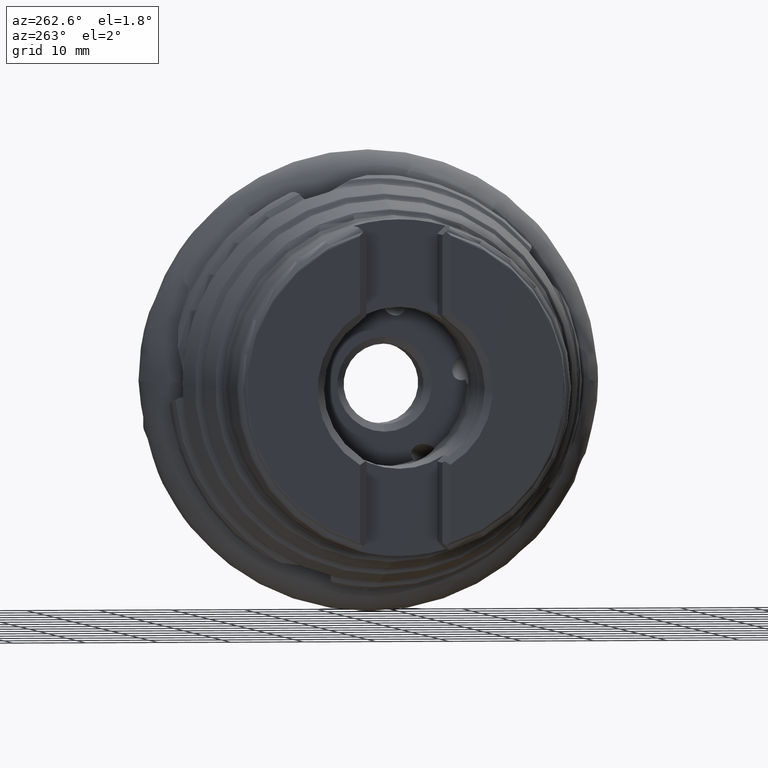
[diagram: clean part render]
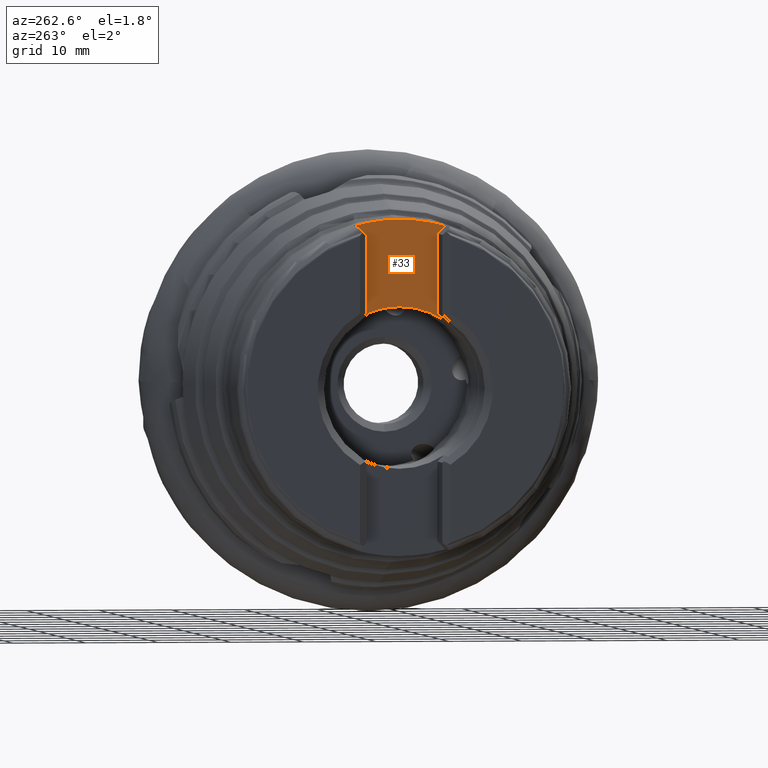
[diagram: same view with one face highlighted and labeled with its STEP entity id]
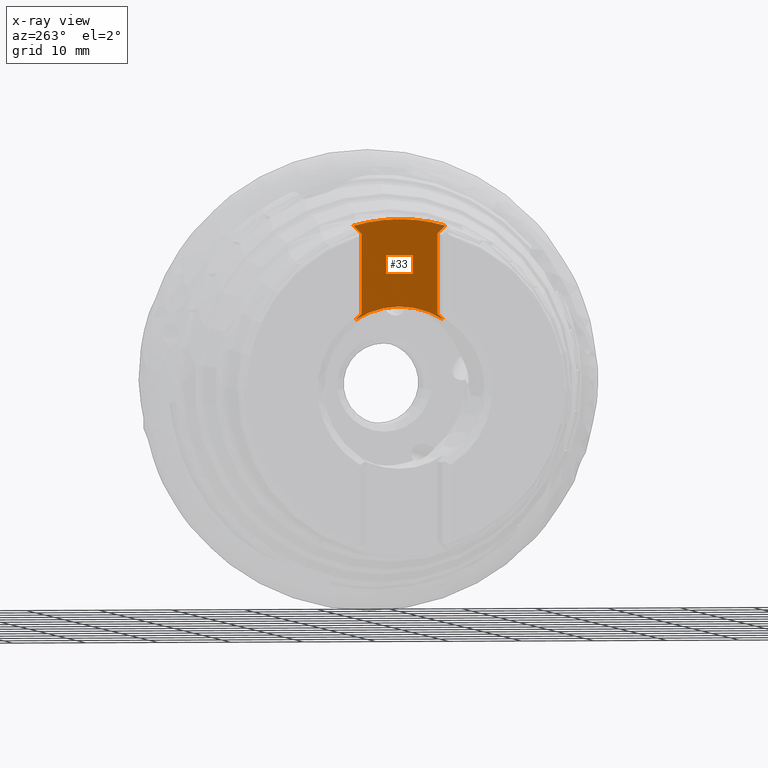
[diagram: x-ray of the same camera — body ghosted, the highlighted face saturated]
A machine part, auxiliary view. The second image highlights one B-rep face of the part: STEP entity #33.
The next image is the same camera in x-ray: the body ghosted, the highlighted face saturated — about 0% of this face is hidden behind the body in this view.
In plain terms, the highlighted planar face has unit normal (1, -0, 0).
Its self-contained STEP definition (entity closure, byte-faithful):
#33 = ADVANCED_FACE ( 'NONE', ( #4687 ), #925, .F. ) ;
#79 = CARTESIAN_POINT ( 'NONE',  ( -37.40000000000000600, 1.356296330055693200E-015, 11.07499999999999600 ) ) ;
#113 = CIRCLE ( 'NONE', #4369, 22.99999999999999300 ) ;
#122 = CIRCLE ( 'NONE', #3286, 11.07499999999999600 ) ;
#174 = CARTESIAN_POINT ( 'NONE',  ( -37.40000000000000600, 13.47264068711931800, 29.25000000000000000 ) ) ;
#176 = DIRECTION ( 'NONE',  ( 0.0000000000000000000, 5.329070518200750600E-015, -1.000000000000000000 ) ) ;
#284 = DIRECTION ( 'NONE',  ( 0.0000000000000000000, -0.7071067811865489100, 0.7071067811865462400 ) ) ;
#380 = ORIENTED_EDGE ( 'NONE', *, *, #1975, .T. ) ;
#384 = VERTEX_POINT ( 'NONE', #4246 ) ;
#798 = CARTESIAN_POINT ( 'NONE',  ( -37.40000000000000600, -5.229999999999999500, 21.00735931288070900 ) ) ;
#836 = VERTEX_POINT ( 'NONE', #79 ) ;
#845 = VERTEX_POINT ( 'NONE', #6298 ) ;
#925 = PLANE ( 'NONE',  #8904 ) ;
#1077 = EDGE_CURVE ( 'NONE', #384, #836, #122, .T. ) ;
#1488 = VERTEX_POINT ( 'NONE', #4515 ) ;
#1573 = VERTEX_POINT ( 'NONE', #8258 ) ;
#1630 = LINE ( 'NONE', #174, #2703 ) ;
#1796 = EDGE_CURVE ( 'NONE', #836, #1573, #4675, .T. ) ;
#1975 = EDGE_CURVE ( 'NONE', #1488, #4920, #113, .T. ) ;
#2175 = CARTESIAN_POINT ( 'NONE',  ( -37.40000000000000600, 5.230000000000000400, 10.10264068711925500 ) ) ;
#2362 = LINE ( 'NONE', #4454, #6144 ) ;
#2703 = VECTOR ( 'NONE', #6709, 999.9999999999998900 ) ;
#2780 = ORIENTED_EDGE ( 'NONE', *, *, #4092, .T. ) ;
#2899 = LINE ( 'NONE', #798, #8953 ) ;
#3249 = DIRECTION ( 'NONE',  ( 0.0000000000000000000, 0.0000000000000000000, -1.000000000000000000 ) ) ;
#3286 = AXIS2_PLACEMENT_3D ( 'NONE', #4707, #7418, #3249 ) ;
#3290 = VERTEX_POINT ( 'NONE', #4287 ) ;
#3297 = EDGE_CURVE ( 'NONE', #845, #1573, #7910, .T. ) ;
#3524 = ORIENTED_EDGE ( 'NONE', *, *, #8557, .T. ) ;
#3620 = DIRECTION ( 'NONE',  ( -1.000000000000000000, 0.0000000000000000000, -0.0000000000000000000 ) ) ;
#3742 = CARTESIAN_POINT ( 'NONE',  ( -37.40000000000000600, 5.230000000000000400, 6.981320343560354600 ) ) ;
#3774 = ORIENTED_EDGE ( 'NONE', *, *, #1796, .F. ) ;
#3855 = ORIENTED_EDGE ( 'NONE', *, *, #1077, .F. ) ;
#3910 = ORIENTED_EDGE ( 'NONE', *, *, #7928, .T. ) ;
#3982 = ORIENTED_EDGE ( 'NONE', *, *, #4831, .T. ) ;
#4092 = EDGE_CURVE ( 'NONE', #5200, #1488, #4856, .T. ) ;
#4246 = CARTESIAN_POINT ( 'NONE',  ( -37.40000000000000600, -6.067775727377863000, 9.264864959741396800 ) ) ;
#4287 = CARTESIAN_POINT ( 'NONE',  ( -37.40000000000000600, 5.230000000000000400, 21.00735931288070900 ) ) ;
#4295 = ORIENTED_EDGE ( 'NONE', *, *, #4308, .T. ) ;
#4307 = CARTESIAN_POINT ( 'NONE',  ( -37.40000000000000600, -6.333441608619367000, 22.11080092150007900 ) ) ;
#4308 = EDGE_CURVE ( 'NONE', #8418, #5200, #2899, .T. ) ;
#4364 = CARTESIAN_POINT ( 'NONE',  ( -37.40000000000000600, 0.0000000000000000000, 0.0000000000000000000 ) ) ;
#4369 = AXIS2_PLACEMENT_3D ( 'NONE', #5621, #8464, #7084 ) ;
#4386 = DIRECTION ( 'NONE',  ( 0.0000000000000000000, 0.0000000000000000000, -1.000000000000000000 ) ) ;
#4431 = DIRECTION ( 'NONE',  ( 0.0000000000000000000, 0.0000000000000000000, -1.000000000000000000 ) ) ;
#4454 = CARTESIAN_POINT ( 'NONE',  ( -37.40000000000000600, -8.351320343558931800, 6.981320343560354600 ) ) ;
#4506 = DIRECTION ( 'NONE',  ( 0.0000000000000000000, 0.0000000000000000000, 1.000000000000000000 ) ) ;
#4515 = CARTESIAN_POINT ( 'NONE',  ( -37.40000000000000600, 2.816687638038911600E-015, 22.99999999999999300 ) ) ;
#4675 = CIRCLE ( 'NONE', #8823, 11.07499999999999600 ) ;
#4687 = FACE_OUTER_BOUND ( 'NONE', #8268, .T. ) ;
#4707 = CARTESIAN_POINT ( 'NONE',  ( -37.40000000000000600, 0.0000000000000000000, 0.0000000000000000000 ) ) ;
#4723 = DIRECTION ( 'NONE',  ( 0.0000000000000000000, 0.7071067811865515700, 0.7071067811865435800 ) ) ;
#4831 = EDGE_CURVE ( 'NONE', #4920, #3290, #1630, .T. ) ;
#4856 = CIRCLE ( 'NONE', #6415, 22.99999999999999300 ) ;
#4920 = VERTEX_POINT ( 'NONE', #5339 ) ;
#5200 = VERTEX_POINT ( 'NONE', #4307 ) ;
#5339 = CARTESIAN_POINT ( 'NONE',  ( -37.40000000000000600, 6.333441608619367000, 22.11080092150007900 ) ) ;
#5621 = CARTESIAN_POINT ( 'NONE',  ( -37.40000000000000600, 0.0000000000000000000, 0.0000000000000000000 ) ) ;
#5623 = CARTESIAN_POINT ( 'NONE',  ( -37.40000000000000600, 5.230000000000000400, 21.00735931288070900 ) ) ;
#6026 = DIRECTION ( 'NONE',  ( 1.000000000000000000, -0.0000000000000000000, 0.0000000000000000000 ) ) ;
#6050 = LINE ( 'NONE', #5623, #8303 ) ;
#6144 = VECTOR ( 'NONE', #4723, 999.9999999999998900 ) ;
#6298 = CARTESIAN_POINT ( 'NONE',  ( -37.40000000000000600, 5.230000000000000400, 10.10264068711925500 ) ) ;
#6415 = AXIS2_PLACEMENT_3D ( 'NONE', #6536, #7258, #176 ) ;
#6536 = CARTESIAN_POINT ( 'NONE',  ( -37.40000000000000600, 0.0000000000000000000, 0.0000000000000000000 ) ) ;
#6709 = DIRECTION ( 'NONE',  ( 0.0000000000000000000, -0.7071067811865489100, -0.7071067811865462400 ) ) ;
#6838 = CARTESIAN_POINT ( 'NONE',  ( -37.40000000000000600, -5.229999999999999500, 21.00735931288070900 ) ) ;
#7084 = DIRECTION ( 'NONE',  ( 0.0000000000000000000, 0.0000000000000000000, -1.000000000000000000 ) ) ;
#7258 = DIRECTION ( 'NONE',  ( -1.000000000000000000, 0.0000000000000000000, -0.0000000000000000000 ) ) ;
#7418 = DIRECTION ( 'NONE',  ( -1.000000000000000000, 0.0000000000000000000, -0.0000000000000000000 ) ) ;
#7687 = EDGE_CURVE ( 'NONE', #8708, #8418, #8435, .T. ) ;
#7858 = ORIENTED_EDGE ( 'NONE', *, *, #3297, .T. ) ;
#7910 = LINE ( 'NONE', #2175, #8770 ) ;
#7920 = CARTESIAN_POINT ( 'NONE',  ( -37.40000000000000600, -5.229999999999999500, 10.10264068711925100 ) ) ;
#7928 = EDGE_CURVE ( 'NONE', #384, #8708, #2362, .T. ) ;
#8258 = CARTESIAN_POINT ( 'NONE',  ( -37.40000000000000600, 6.067775727377878100, 9.264864959741387900 ) ) ;
#8268 = EDGE_LOOP ( 'NONE', ( #2780, #380, #3982, #3524, #7858, #3774, #3855, #3910, #8952, #4295 ) ) ;
#8303 = VECTOR ( 'NONE', #8370, 1000.000000000000000 ) ;
#8336 = DIRECTION ( 'NONE',  ( 0.0000000000000000000, 0.7071067811865511300, -0.7071067811865440200 ) ) ;
#8370 = DIRECTION ( 'NONE',  ( 0.0000000000000000000, 0.0000000000000000000, -1.000000000000000000 ) ) ;
#8418 = VERTEX_POINT ( 'NONE', #6838 ) ;
#8435 = LINE ( 'NONE', #7920, #8757 ) ;
#8464 = DIRECTION ( 'NONE',  ( -1.000000000000000000, 0.0000000000000000000, -0.0000000000000000000 ) ) ;
#8557 = EDGE_CURVE ( 'NONE', #3290, #845, #6050, .T. ) ;
#8640 = CARTESIAN_POINT ( 'NONE',  ( -37.40000000000000600, -5.229999999999999500, 10.10264068711925100 ) ) ;
#8708 = VERTEX_POINT ( 'NONE', #8640 ) ;
#8757 = VECTOR ( 'NONE', #4506, 1000.000000000000000 ) ;
#8770 = VECTOR ( 'NONE', #8336, 1000.000000000000000 ) ;
#8823 = AXIS2_PLACEMENT_3D ( 'NONE', #4364, #3620, #4431 ) ;
#8904 = AXIS2_PLACEMENT_3D ( 'NONE', #3742, #6026, #4386 ) ;
#8952 = ORIENTED_EDGE ( 'NONE', *, *, #7687, .T. ) ;
#8953 = VECTOR ( 'NONE', #284, 1000.000000000000000 ) ;